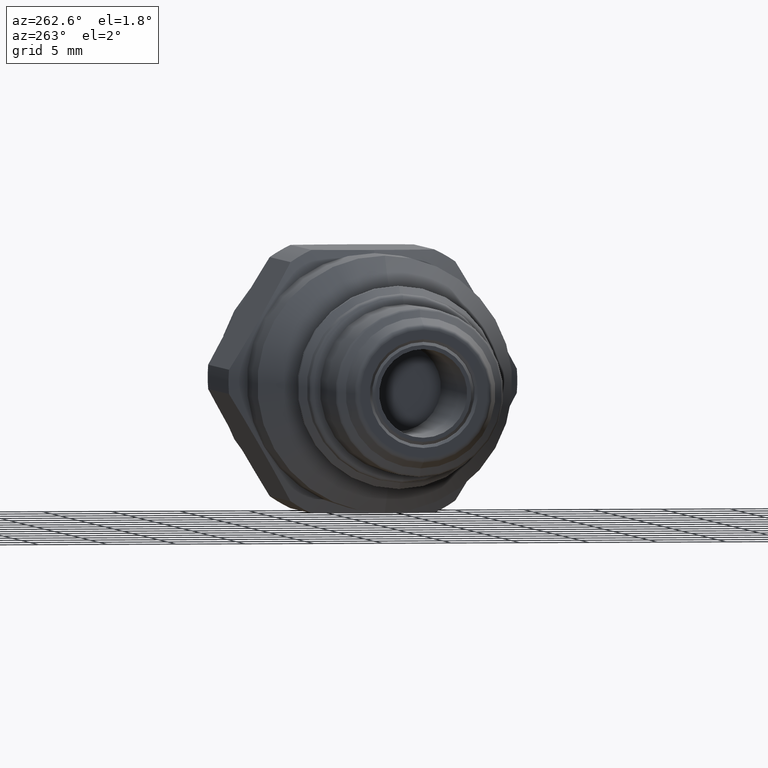
[diagram: clean part render]
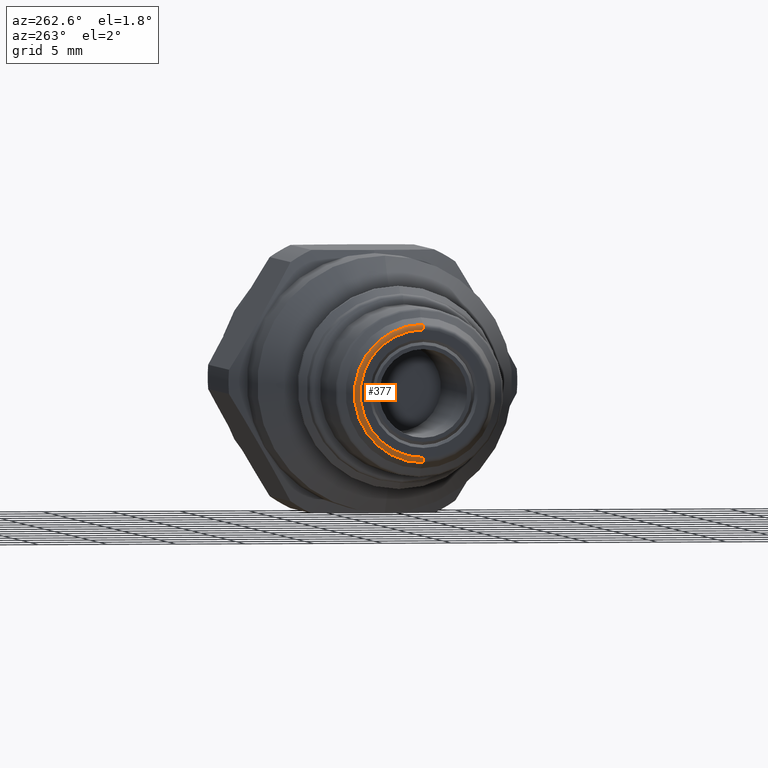
[diagram: same view with one face highlighted and labeled with its STEP entity id]
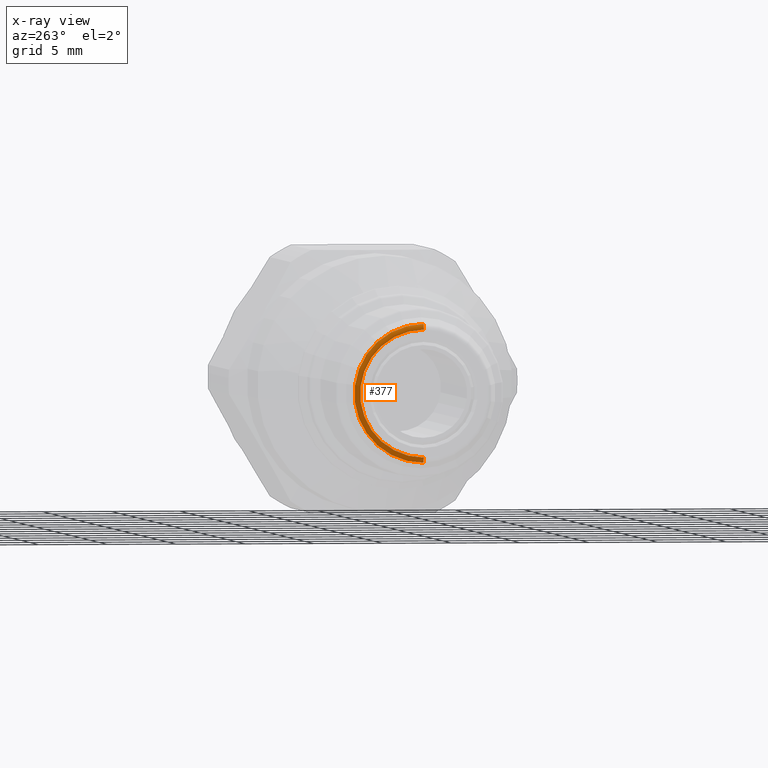
[diagram: x-ray of the same camera — body ghosted, the highlighted face saturated]
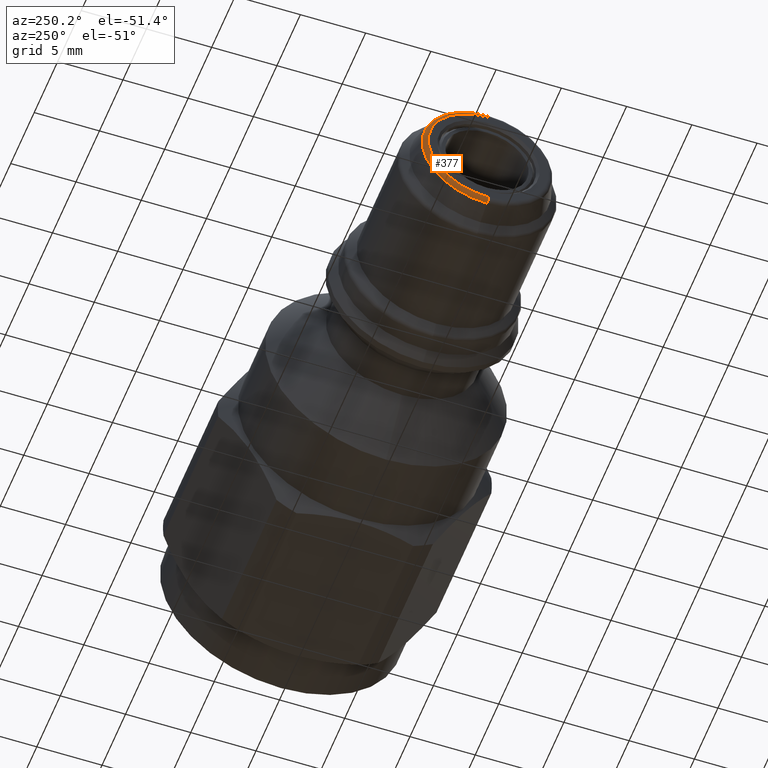
[diagram: same view with one face highlighted and labeled with its STEP entity id]
A machine part, auxiliary view. The second image highlights one B-rep face of the part: STEP entity #377.
The next image is the same camera in x-ray: the body ghosted, the highlighted face saturated — about 0% of this face is hidden behind the body in this view.
A second angle (auxiliary view) of the same face is appended — the face is thin or edge-on in the first view.
In plain terms, the highlighted toroidal blend (fillet) surface has major radius 4.6173 mm and minor (blend) radius 0.4 mm.
Its self-contained STEP definition (entity closure, byte-faithful):
#46 = DIRECTION ( 'NONE',  ( 0.0000000000000000000, 0.0000000000000000000, -1.000000000000000000 ) ) ;
#73 = CARTESIAN_POINT ( 'NONE',  ( -44.50000000003974800, 0.0000000000000000000, 0.0000000000000000000 ) ) ;
#75 = CARTESIAN_POINT ( 'NONE',  ( -44.10000000003979900, 0.0000000000000000000, -4.617251435346900300 ) ) ;
#79 = DIRECTION ( 'NONE',  ( -1.000000000000000000, -0.0000000000000000000, -0.0000000000000000000 ) ) ;
#130 = DIRECTION ( 'NONE',  ( 0.0000000000000000000, 1.000000000000000000, -1.224646799147353200E-016 ) ) ;
#131 = DIRECTION ( 'NONE',  ( 0.0000000000000000000, 1.224646799147353200E-016, 1.000000000000000000 ) ) ;
#133 = CARTESIAN_POINT ( 'NONE',  ( -44.10000000003979900, 5.654502191156103100E-016, 4.617251435346900300 ) ) ;
#221 = EDGE_CURVE ( 'NONE', #744, #707, #983, .T. ) ;
#223 = EDGE_CURVE ( 'NONE', #744, #662, #980, .T. ) ;
#224 = EDGE_CURVE ( 'NONE', #662, #661, #979, .T. ) ;
#265 = EDGE_CURVE ( 'NONE', #661, #707, #938, .T. ) ;
#333 = AXIS2_PLACEMENT_3D ( 'NONE', #75, #1810, #1809 ) ;
#334 = AXIS2_PLACEMENT_3D ( 'NONE', #73, #79, #46 ) ;
#336 = AXIS2_PLACEMENT_3D ( 'NONE', #133, #130, #131 ) ;
#349 = AXIS2_PLACEMENT_3D ( 'NONE', #1889, #1888, #1887 ) ;
#377 = ADVANCED_FACE ( 'NONE', ( #846 ), #845, .T. ) ;
#661 = VERTEX_POINT ( 'NONE', #1477 ) ;
#662 = VERTEX_POINT ( 'NONE', #1475 ) ;
#707 = VERTEX_POINT ( 'NONE', #1537 ) ;
#744 = VERTEX_POINT ( 'NONE', #1591 ) ;
#845 = TOROIDAL_SURFACE ( 'NONE', #1436, 4.617251435346900300, 0.4000000000000000200 ) ;
#846 = FACE_OUTER_BOUND ( 'NONE', #1302, .T. ) ;
#938 = CIRCLE ( 'NONE', #349, 4.999773337732110100 ) ;
#979 = CIRCLE ( 'NONE', #333, 0.4000000000000001900 ) ;
#980 = CIRCLE ( 'NONE', #334, 4.617251435346900300 ) ;
#983 = CIRCLE ( 'NONE', #336, 0.4000000000000001900 ) ;
#1088 = ORIENTED_EDGE ( 'NONE', *, *, #221, .T. ) ;
#1120 = ORIENTED_EDGE ( 'NONE', *, *, #224, .F. ) ;
#1121 = ORIENTED_EDGE ( 'NONE', *, *, #223, .F. ) ;
#1122 = ORIENTED_EDGE ( 'NONE', *, *, #265, .F. ) ;
#1302 = EDGE_LOOP ( 'NONE', ( #1121, #1088, #1122, #1120 ) ) ;
#1436 = AXIS2_PLACEMENT_3D ( 'NONE', #1601, #1615, #1533 ) ;
#1475 = CARTESIAN_POINT ( 'NONE',  ( -44.50000000003974800, 0.0000000000000000000, -4.617251435346900300 ) ) ;
#1477 = CARTESIAN_POINT ( 'NONE',  ( -44.21694868192889800, 0.0000000000000000000, -4.999773337732110100 ) ) ;
#1533 = DIRECTION ( 'NONE',  ( 0.0000000000000000000, 0.0000000000000000000, -1.000000000000000000 ) ) ;
#1537 = CARTESIAN_POINT ( 'NONE',  ( -44.21694868192889800, 6.398365983410417700E-016, 4.999773337732110100 ) ) ;
#1591 = CARTESIAN_POINT ( 'NONE',  ( -44.50000000003974800, 5.888729302836007300E-016, 4.617251435346900300 ) ) ;
#1601 = CARTESIAN_POINT ( 'NONE',  ( -44.10000000003979900, 0.0000000000000000000, 0.0000000000000000000 ) ) ;
#1615 = DIRECTION ( 'NONE',  ( 1.000000000000000000, 0.0000000000000000000, 0.0000000000000000000 ) ) ;
#1809 = DIRECTION ( 'NONE',  ( 0.0000000000000000000, 0.0000000000000000000, -1.000000000000000000 ) ) ;
#1810 = DIRECTION ( 'NONE',  ( 0.0000000000000000000, -1.000000000000000000, 0.0000000000000000000 ) ) ;
#1887 = DIRECTION ( 'NONE',  ( 0.0000000000000000000, 0.0000000000000000000, 1.000000000000000000 ) ) ;
#1888 = DIRECTION ( 'NONE',  ( 1.000000000000000000, -0.0000000000000000000, -0.0000000000000000000 ) ) ;
#1889 = CARTESIAN_POINT ( 'NONE',  ( -44.21694868192889800, 0.0000000000000000000, 0.0000000000000000000 ) ) ;